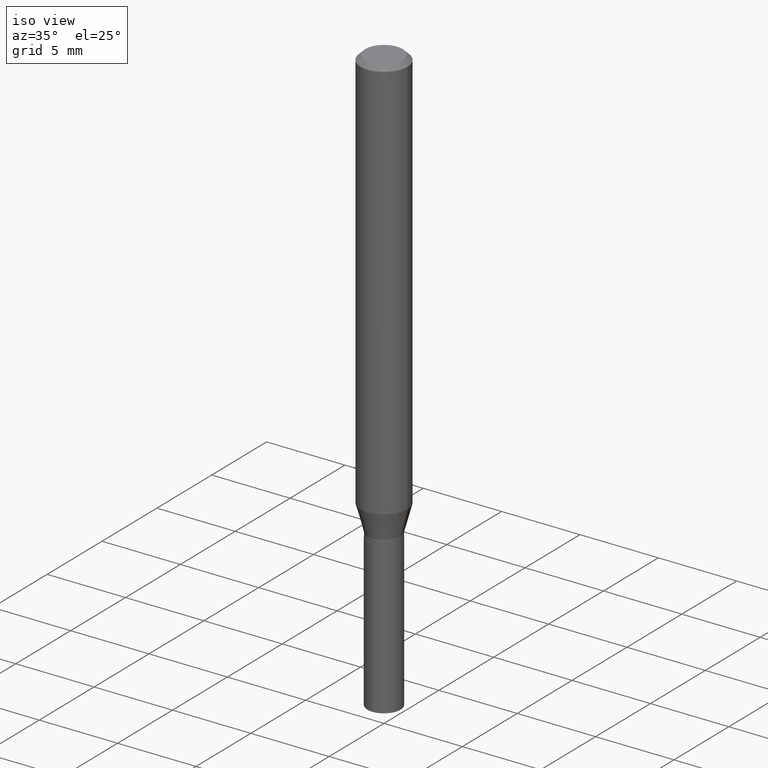
[diagram: clean part render]
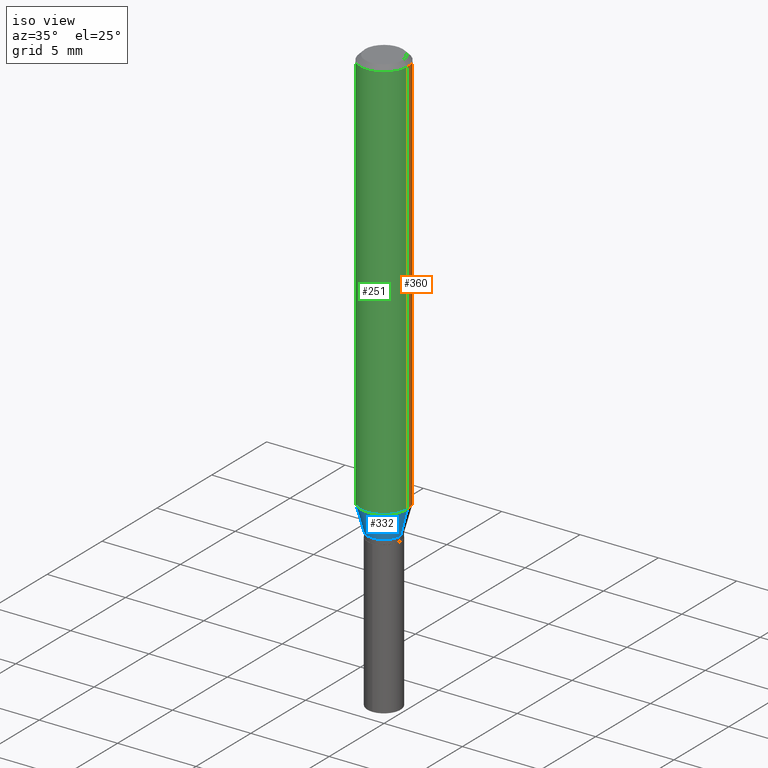
[diagram: same view with three faces highlighted in distinct colors, each labeled with its STEP entity id]
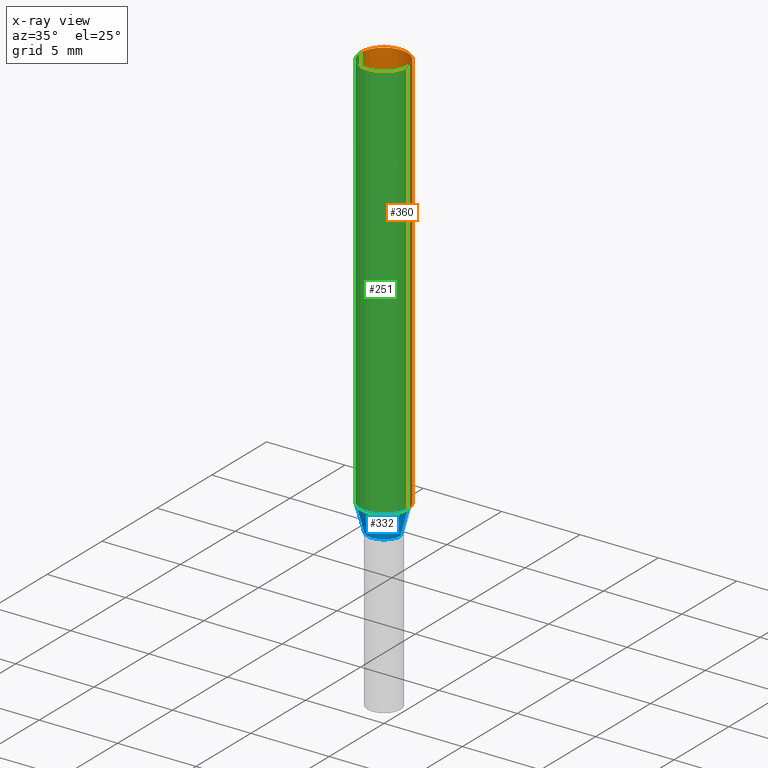
[diagram: x-ray of the same camera — body ghosted, the three highlighted faces saturated]
A machine part, iso view with three faces highlighted in distinct colors.
The next image is the same camera in x-ray (body ghosted, the three faces saturated) — at least one of them is partly hidden behind the body in this view.
Their STEP definitions:

[orange] entity #360 — the highlighted cylindrical surface (edge-blend (fillet) strip) has radius 1.4999 mm, axis along (-0, 0, 1).
#7 = VERTEX_POINT ( 'NONE', #412 ) ;
#10 = DIRECTION ( 'NONE',  ( 1.000000000000000000, -6.982962677686268288E-15, 0.000000000000000000 ) ) ;
#26 = EDGE_CURVE ( 'NONE', #7, #339, #165, .T. ) ;
#69 = DIRECTION ( 'NONE',  ( -2.445468806185136597E-29, 3.491481338843145583E-15, 1.000000000000000000 ) ) ;
#76 = ORIENTED_EDGE ( 'NONE', *, *, #180, .F. ) ;
#81 = EDGE_CURVE ( 'NONE', #339, #195, #373, .T. ) ;
#85 = EDGE_CURVE ( 'NONE', #7, #334, #260, .T. ) ;
#87 = CARTESIAN_POINT ( 'NONE',  ( 2.486281506214680923E-29, -3.549751057999059789E-15, -1.016689110867543988 ) ) ;
#97 = CARTESIAN_POINT ( 'NONE',  ( -0.05905000000000000526, -1.375917240839058674E-15, -0.01181000000000007565 ) ) ;
#107 = FACE_OUTER_BOUND ( 'NONE', #270, .T. ) ;
#121 = CARTESIAN_POINT ( 'NONE',  ( 0.05905000000000006771, -4.123439461173745257E-16, 2.879382386107503723E-30 ) ) ;
#159 = AXIS2_PLACEMENT_3D ( 'NONE', #183, #69, #357 ) ;
#162 = DIRECTION ( 'NONE',  ( -2.445468806185136597E-29, 3.491481338843145583E-15, 1.000000000000000000 ) ) ;
#165 = CIRCLE ( 'NONE', #253, 0.05905000000000013016 ) ;
#180 = EDGE_CURVE ( 'NONE', #334, #195, #483, .T. ) ;
#183 = CARTESIAN_POINT ( 'NONE',  ( 0.000000000000000000, 0.000000000000000000, 0.000000000000000000 ) ) ;
#195 = VERTEX_POINT ( 'NONE', #97 ) ;
#228 = DIRECTION ( 'NONE',  ( 1.000000000000000000, -6.982962677686265133E-15, 0.000000000000000000 ) ) ;
#232 = ORIENTED_EDGE ( 'NONE', *, *, #85, .F. ) ;
#239 = CARTESIAN_POINT ( 'NONE',  ( 2.888098660104664642E-31, -4.123439461173780879E-17, -0.01181000000000007565 ) ) ;
#252 = CARTESIAN_POINT ( 'NONE',  ( -0.05905000000000013016, -3.130175572532719507E-15, -1.016689110867543988 ) ) ;
#253 = AXIS2_PLACEMENT_3D ( 'NONE', #87, #162, #228 ) ;
#260 = LINE ( 'NONE', #121, #345 ) ;
#263 = AXIS2_PLACEMENT_3D ( 'NONE', #239, #422, #10 ) ;
#270 = EDGE_LOOP ( 'NONE', ( #462, #444, #76, #232 ) ) ;
#280 = VECTOR ( 'NONE', #375, 39.37007874015748143 ) ;
#331 = CARTESIAN_POINT ( 'NONE',  ( -0.05905000000000006771, 4.195754854663396409E-16, -2.904631170795525045E-30 ) ) ;
#334 = VERTEX_POINT ( 'NONE', #440 ) ;
#339 = VERTEX_POINT ( 'NONE', #252 ) ;
#340 = DIRECTION ( 'NONE',  ( -2.445468806185136877E-29, 3.491481338843145188E-15, 1.000000000000000000 ) ) ;
#345 = VECTOR ( 'NONE', #340, 39.37007874015748143 ) ;
#357 = DIRECTION ( 'NONE',  ( 1.000000000000000000, -6.982962677686266711E-15, 4.876176775795936353E-29 ) ) ;
#360 = ADVANCED_FACE ( 'NONE', ( #107 ), #436, .T. ) ;
#373 = LINE ( 'NONE', #331, #280 ) ;
#375 = DIRECTION ( 'NONE',  ( -2.445468806185136877E-29, 3.491481338843145188E-15, 1.000000000000000000 ) ) ;
#412 = CARTESIAN_POINT ( 'NONE',  ( 0.05905000000000013016, -3.962095004116434314E-15, -1.016689110867543988 ) ) ;
#422 = DIRECTION ( 'NONE',  ( -2.445468806185136597E-29, 3.491481338843145583E-15, 1.000000000000000000 ) ) ;
#436 = CYLINDRICAL_SURFACE ( 'NONE', #159, 0.05905000000000006771 ) ;
#440 = CARTESIAN_POINT ( 'NONE',  ( 0.05905000000000000526, -4.535783407291119586E-16, -0.01181000000000007565 ) ) ;
#444 = ORIENTED_EDGE ( 'NONE', *, *, #81, .T. ) ;
#462 = ORIENTED_EDGE ( 'NONE', *, *, #26, .T. ) ;
#483 = CIRCLE ( 'NONE', #263, 0.05905000000000000526 ) ;

[blue] entity #332 — the highlighted conical surface has half-angle 15 deg.
#1 = DIRECTION ( 'NONE',  ( -2.445468806185136597E-29, 3.491481338843145583E-15, 1.000000000000000000 ) ) ;
#7 = VERTEX_POINT ( 'NONE', #412 ) ;
#22 = DIRECTION ( 'NONE',  ( -2.445468806185136597E-29, 3.491481338843145583E-15, 1.000000000000000000 ) ) ;
#56 = AXIS2_PLACEMENT_3D ( 'NONE', #129, #387, #242 ) ;
#83 = EDGE_LOOP ( 'NONE', ( #141, #297, #193, #169 ) ) ;
#84 = CARTESIAN_POINT ( 'NONE',  ( 0.04154999999999996196, -4.067924907886146966E-15, -1.081999999999999851 ) ) ;
#91 = CARTESIAN_POINT ( 'NONE',  ( -0.04154999999999996196, -3.503501189953020194E-15, -1.081999999999999851 ) ) ;
#129 = CARTESIAN_POINT ( 'NONE',  ( 2.645997248292317363E-29, -3.777782808628282818E-15, -1.081999999999999851 ) ) ;
#134 = EDGE_CURVE ( 'NONE', #339, #7, #317, .T. ) ;
#141 = ORIENTED_EDGE ( 'NONE', *, *, #421, .F. ) ;
#143 = LINE ( 'NONE', #257, #484 ) ;
#157 = VECTOR ( 'NONE', #461, 39.37007874015747433 ) ;
#161 = EDGE_CURVE ( 'NONE', #431, #7, #459, .T. ) ;
#167 = VERTEX_POINT ( 'NONE', #91 ) ;
#169 = ORIENTED_EDGE ( 'NONE', *, *, #134, .F. ) ;
#193 = ORIENTED_EDGE ( 'NONE', *, *, #161, .T. ) ;
#221 = DIRECTION ( 'NONE',  ( -0.2588190451025214611, 5.211531920934551042E-15, 0.9659258262890682012 ) ) ;
#226 = CARTESIAN_POINT ( 'NONE',  ( 2.486281506214680923E-29, -3.549751057999059789E-15, -1.016689110867543988 ) ) ;
#227 = EDGE_CURVE ( 'NONE', #167, #431, #447, .T. ) ;
#242 = DIRECTION ( 'NONE',  ( 1.000000000000000000, -6.982962677686265133E-15, 0.000000000000000000 ) ) ;
#252 = CARTESIAN_POINT ( 'NONE',  ( -0.05905000000000013016, -3.130175572532719507E-15, -1.016689110867543988 ) ) ;
#254 = CONICAL_SURFACE ( 'NONE', #354, 0.04154999999999996196, 0.2617993877991501295 ) ;
#257 = CARTESIAN_POINT ( 'NONE',  ( -0.04154999999999996196, -3.482552301919960968E-15, -1.081999999999999851 ) ) ;
#283 = FACE_OUTER_BOUND ( 'NONE', #83, .T. ) ;
#292 = DIRECTION ( 'NONE',  ( 1.000000000000000000, -6.982962677686265133E-15, 0.000000000000000000 ) ) ;
#297 = ORIENTED_EDGE ( 'NONE', *, *, #227, .T. ) ;
#317 = CIRCLE ( 'NONE', #330, 0.05905000000000013016 ) ;
#330 = AXIS2_PLACEMENT_3D ( 'NONE', #226, #1, #414 ) ;
#332 = ADVANCED_FACE ( 'NONE', ( #283 ), #254, .T. ) ;
#339 = VERTEX_POINT ( 'NONE', #252 ) ;
#354 = AXIS2_PLACEMENT_3D ( 'NONE', #437, #22, #292 ) ;
#387 = DIRECTION ( 'NONE',  ( -2.445468806185136597E-29, 3.491481338843145583E-15, 1.000000000000000000 ) ) ;
#412 = CARTESIAN_POINT ( 'NONE',  ( 0.05905000000000013016, -3.962095004116434314E-15, -1.016689110867543988 ) ) ;
#414 = DIRECTION ( 'NONE',  ( 1.000000000000000000, -6.982962677686265133E-15, 0.000000000000000000 ) ) ;
#421 = EDGE_CURVE ( 'NONE', #167, #339, #143, .T. ) ;
#431 = VERTEX_POINT ( 'NONE', #476 ) ;
#437 = CARTESIAN_POINT ( 'NONE',  ( 2.645997248292317363E-29, -3.777782808628282818E-15, -1.081999999999999851 ) ) ;
#447 = CIRCLE ( 'NONE', #56, 0.04154999999999996196 ) ;
#459 = LINE ( 'NONE', #84, #157 ) ;
#461 = DIRECTION ( 'NONE',  ( 0.2588190451025214611, 1.565188264969621573E-15, 0.9659258262890682012 ) ) ;
#476 = CARTESIAN_POINT ( 'NONE',  ( 0.04154999999999996196, -4.067924907886146966E-15, -1.081999999999999851 ) ) ;
#484 = VECTOR ( 'NONE', #221, 39.37007874015747433 ) ;

[green] entity #251 — the highlighted cylindrical surface (edge-blend (fillet) strip) has radius 1.4999 mm, axis along (-0, 0, 1).
#1 = DIRECTION ( 'NONE',  ( -2.445468806185136597E-29, 3.491481338843145583E-15, 1.000000000000000000 ) ) ;
#7 = VERTEX_POINT ( 'NONE', #412 ) ;
#57 = DIRECTION ( 'NONE',  ( 1.000000000000000000, -6.982962677686266711E-15, 4.876176775795936353E-29 ) ) ;
#81 = EDGE_CURVE ( 'NONE', #339, #195, #373, .T. ) ;
#85 = EDGE_CURVE ( 'NONE', #7, #334, #260, .T. ) ;
#97 = CARTESIAN_POINT ( 'NONE',  ( -0.05905000000000000526, -1.375917240839058674E-15, -0.01181000000000007565 ) ) ;
#100 = AXIS2_PLACEMENT_3D ( 'NONE', #433, #278, #57 ) ;
#121 = CARTESIAN_POINT ( 'NONE',  ( 0.05905000000000006771, -4.123439461173745257E-16, 2.879382386107503723E-30 ) ) ;
#134 = EDGE_CURVE ( 'NONE', #339, #7, #317, .T. ) ;
#192 = AXIS2_PLACEMENT_3D ( 'NONE', #284, #255, #353 ) ;
#195 = VERTEX_POINT ( 'NONE', #97 ) ;
#226 = CARTESIAN_POINT ( 'NONE',  ( 2.486281506214680923E-29, -3.549751057999059789E-15, -1.016689110867543988 ) ) ;
#240 = ORIENTED_EDGE ( 'NONE', *, *, #134, .T. ) ;
#251 = ADVANCED_FACE ( 'NONE', ( #344 ), #469, .T. ) ;
#252 = CARTESIAN_POINT ( 'NONE',  ( -0.05905000000000013016, -3.130175572532719507E-15, -1.016689110867543988 ) ) ;
#255 = DIRECTION ( 'NONE',  ( -2.445468806185136597E-29, 3.491481338843145583E-15, 1.000000000000000000 ) ) ;
#260 = LINE ( 'NONE', #121, #345 ) ;
#264 = ORIENTED_EDGE ( 'NONE', *, *, #366, .F. ) ;
#278 = DIRECTION ( 'NONE',  ( -2.445468806185136597E-29, 3.491481338843145583E-15, 1.000000000000000000 ) ) ;
#280 = VECTOR ( 'NONE', #375, 39.37007874015748143 ) ;
#284 = CARTESIAN_POINT ( 'NONE',  ( 2.888098660104664642E-31, -4.123439461173780879E-17, -0.01181000000000007565 ) ) ;
#302 = EDGE_LOOP ( 'NONE', ( #413, #240, #460, #264 ) ) ;
#317 = CIRCLE ( 'NONE', #330, 0.05905000000000013016 ) ;
#330 = AXIS2_PLACEMENT_3D ( 'NONE', #226, #1, #414 ) ;
#331 = CARTESIAN_POINT ( 'NONE',  ( -0.05905000000000006771, 4.195754854663396409E-16, -2.904631170795525045E-30 ) ) ;
#334 = VERTEX_POINT ( 'NONE', #440 ) ;
#339 = VERTEX_POINT ( 'NONE', #252 ) ;
#340 = DIRECTION ( 'NONE',  ( -2.445468806185136877E-29, 3.491481338843145188E-15, 1.000000000000000000 ) ) ;
#344 = FACE_OUTER_BOUND ( 'NONE', #302, .T. ) ;
#345 = VECTOR ( 'NONE', #340, 39.37007874015748143 ) ;
#353 = DIRECTION ( 'NONE',  ( 1.000000000000000000, -6.982962677686268288E-15, 0.000000000000000000 ) ) ;
#366 = EDGE_CURVE ( 'NONE', #195, #334, #438, .T. ) ;
#373 = LINE ( 'NONE', #331, #280 ) ;
#375 = DIRECTION ( 'NONE',  ( -2.445468806185136877E-29, 3.491481338843145188E-15, 1.000000000000000000 ) ) ;
#412 = CARTESIAN_POINT ( 'NONE',  ( 0.05905000000000013016, -3.962095004116434314E-15, -1.016689110867543988 ) ) ;
#413 = ORIENTED_EDGE ( 'NONE', *, *, #81, .F. ) ;
#414 = DIRECTION ( 'NONE',  ( 1.000000000000000000, -6.982962677686265133E-15, 0.000000000000000000 ) ) ;
#433 = CARTESIAN_POINT ( 'NONE',  ( 0.000000000000000000, 0.000000000000000000, 0.000000000000000000 ) ) ;
#438 = CIRCLE ( 'NONE', #192, 0.05905000000000000526 ) ;
#440 = CARTESIAN_POINT ( 'NONE',  ( 0.05905000000000000526, -4.535783407291119586E-16, -0.01181000000000007565 ) ) ;
#460 = ORIENTED_EDGE ( 'NONE', *, *, #85, .T. ) ;
#469 = CYLINDRICAL_SURFACE ( 'NONE', #100, 0.05905000000000006771 ) ;